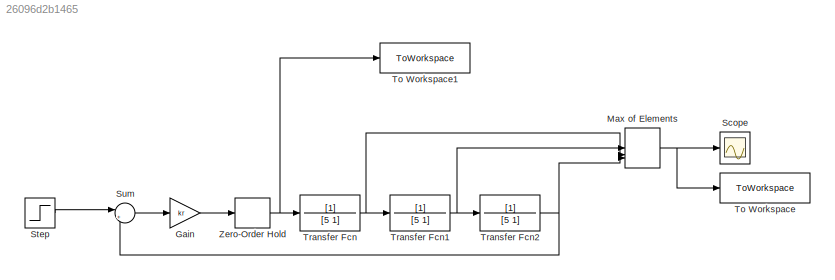
MODEL slx_26096d2b1465
KIND model
CONFIG AbsTol = auto
CONFIG EnableMultiTasking = off
CONFIG FixedStep = auto
CONFIG MaxStep = auto
CONFIG MinStep = auto
CONFIG RelTol = 1e-3
CONFIG SampleTimeConstraint = Unconstrained
CONFIG SolverName = VariableStepAuto
CONFIG StartTime = 0.0
CONFIG StopTime = 200
BLOCK [Gain] Gain
  Gain = kr
BLOCK [MinMax] Max of Elements
  Function = max
  Inputs = 3
BLOCK [Scope] Scope
  Floating = off
  NumInputPorts = 1
  ScopeSpecificationString = Simulink.scopes.TimeScopeBlockCfg('CurrentConfiguration', extmgr.ConfigurationSet(extmgr.Configuration('Core','General UI',true),extmgr.Configuration('Core','Source UI',true),extmgr.Configuration('Sources','WiredSimulink',true),extmgr.Configuration('Visuals','Time Domain',true,'SerializedDisplays',{struct('MinYLimReal','-4544.50129','MaxYLimReal','10074.0015','YLabelReal','','MinYLimMag','  0.0000...<+1405ch>
BLOCK [Step] Step
  SampleTime = 0
BLOCK [Sum] Sum
  Inputs = |+-
BLOCK [ToWorkspace] To Workspace
  FixptAsFi = on
  MaxDataPoints = inf
  SampleTime = -1
  SaveFormat = Timeseries
  VariableName = x
BLOCK [ToWorkspace] To Workspace1
  FixptAsFi = on
  MaxDataPoints = inf
  SampleTime = -1
  SaveFormat = Timeseries
  VariableName = ster
BLOCK [TransferFcn] Transfer Fcn
  Denominator = [5 1]
BLOCK [TransferFcn] Transfer Fcn1
  Denominator = [5 1]
BLOCK [TransferFcn] Transfer Fcn2
  Denominator = [5 1]
BLOCK [ZeroOrderHold] Zero-Order Hold
  SampleTime = Tp
LINE Gain:1 -> Zero-Order Hold:1
NET Max of Elements:1 -> Scope:1, To Workspace:1
LINE Step:1 -> Sum:1
LINE Sum:1 -> Gain:1
NET Transfer Fcn1:1 -> Max of Elements:2, Transfer Fcn2:1
NET Transfer Fcn2:1 -> Max of Elements:3, Sum:2
NET Transfer Fcn:1 -> Max of Elements:1, Transfer Fcn1:1
NET Zero-Order Hold:1 -> To Workspace1:1, Transfer Fcn:1
note: NET lines group one-source signal fan-out (src -> all destinations, sorted); 1:1 wires keep LINE
